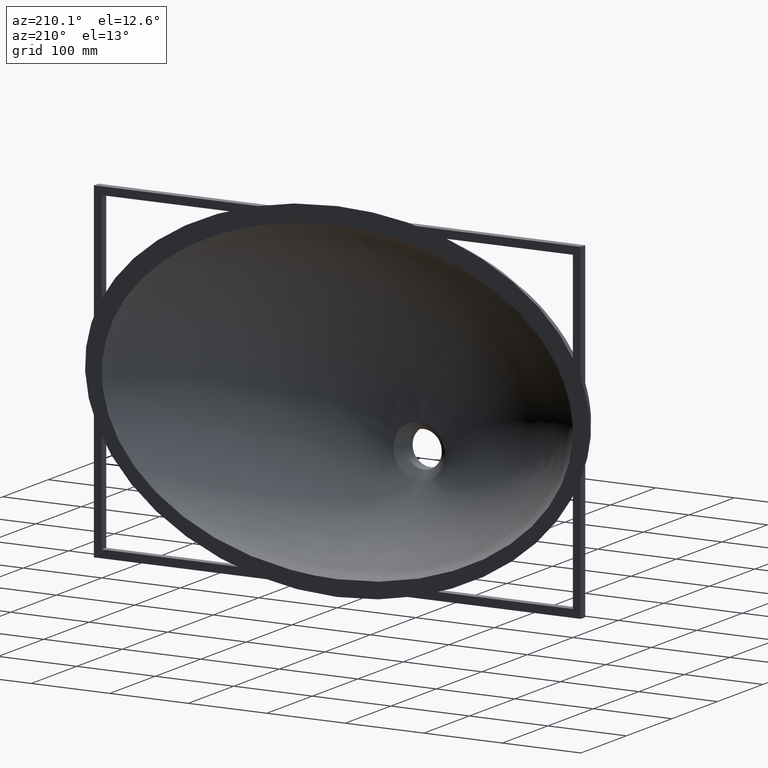
[diagram: clean part render]
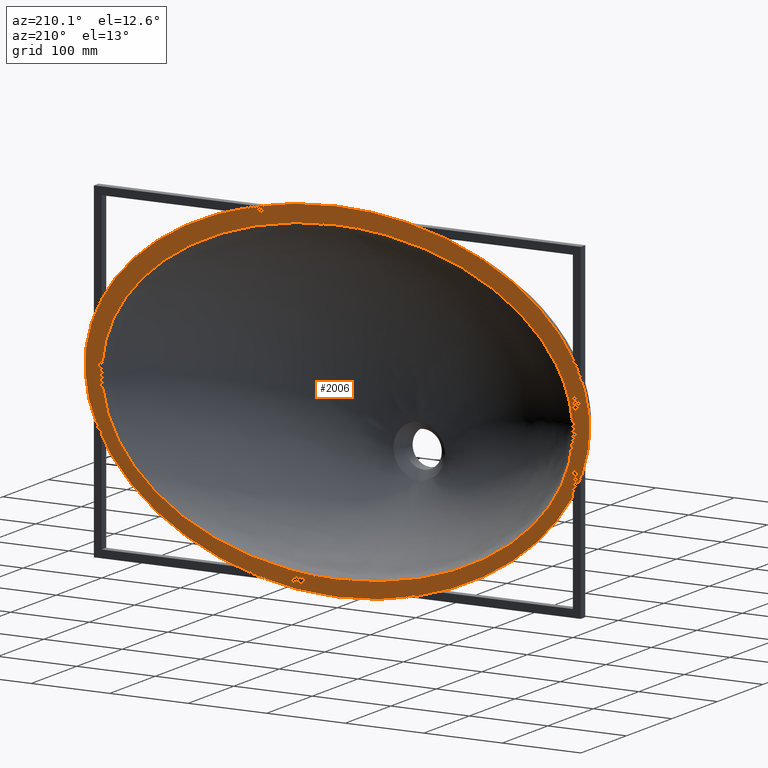
[diagram: same view with one face highlighted and labeled with its STEP entity id]
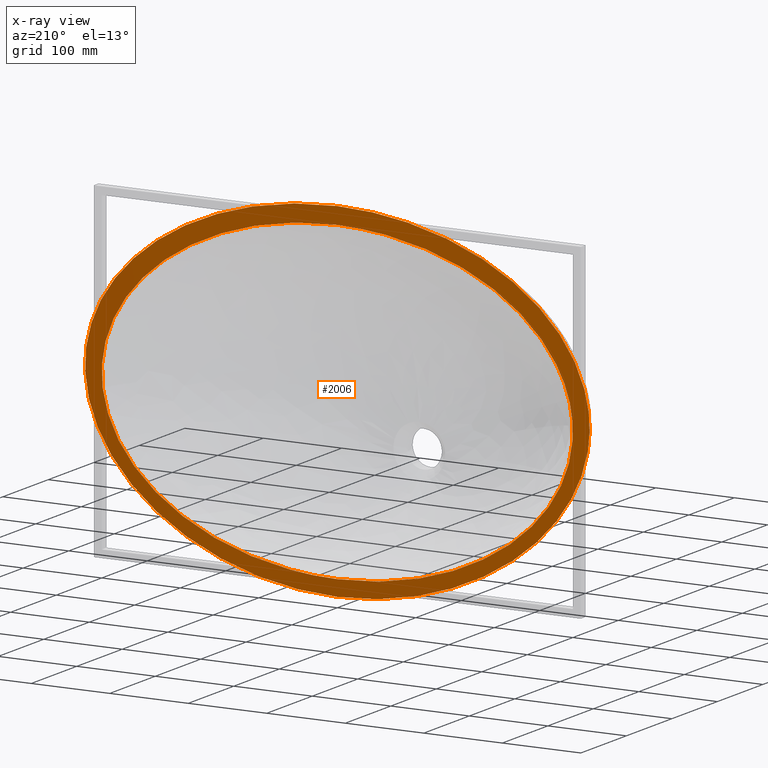
[diagram: x-ray of the same camera — body ghosted, the highlighted face saturated]
A machine part, auxiliary view. The second image highlights one B-rep face of the part: STEP entity #2006.
The next image is the same camera in x-ray: the body ghosted, the highlighted face saturated — about 0% of this face is hidden behind the body in this view.
In plain terms, the highlighted planar face has unit normal (0, 1, 0).
Its self-contained STEP definition (entity closure, byte-faithful):
#25 = CARTESIAN_POINT ( 'NONE',  ( -96.94433853191210900, 0.0000000000000000000, -190.0690652849752100 ) ) ;
#33 = B_SPLINE_CURVE_WITH_KNOTS ( 'NONE', 3,
 ( #3662, #3337, #879, #2982, #525, #2623, #172, #2267, #4356, #1917, #4002, #1506, #3580, #1151, #3241, #796, #2899, #446, #2548, #88, #2193, #4278, #1836 ),
 .UNSPECIFIED., .F., .F.,
 ( 4, 1, 1, 1, 1, 1, 1, 1, 1, 1, 1, 1, 1, 1, 1, 1, 1, 1, 1, 1, 4 ),
 ( 0.0000000000000000000, 0.006249999999981435300, 0.03124999999990673400, 0.04687499999986010500, 0.07812499999976683900, 0.09374999999972021000, 0.1249999999996269400, 0.1562499999995336800, 0.1718749999994870500, 0.2031249999993937600, 0.2499999999994795800, 0.2578124999992305600, 0.2968749999991139900, 0.3281249999990207300, 0.3437499999989741000, 0.3749999999988808400, 0.4062499999987875300, 0.4218749999987409000, 0.4531249999986476400, 0.4687499999986010100, 0.5000000000000000000 ),
 .UNSPECIFIED. ) ;
#88 = CARTESIAN_POINT ( 'NONE',  ( -103.2381490970990100, 2.132497335907396700E-014, 210.7208023381491600 ) ) ;
#107 = CARTESIAN_POINT ( 'NONE',  ( -6.362098348144940000E-013, 0.0000000000000000000, -199.9999999999999400 ) ) ;
#160 = CARTESIAN_POINT ( 'NONE',  ( 270.1489477475109300, 0.0000000000000000000, 88.69899296314076800 ) ) ;
#172 = CARTESIAN_POINT ( 'NONE',  ( -187.0728004054563200, 6.300348080448575400E-014, -176.9853294242731700 ) ) ;
#198 = CARTESIAN_POINT ( 'NONE',  ( 103.4425654388036500, 8.681087635249622700E-014, -208.2346759364824000 ) ) ;
#215 = CARTESIAN_POINT ( 'NONE',  ( 186.7491606980555600, 2.125024848000798700E-014, 182.1903061432608700 ) ) ;
#217 = CARTESIAN_POINT ( 'NONE',  ( 299.2574925619122700, 0.0000000000000000000, 23.02731537193677600 ) ) ;
#345 = CARTESIAN_POINT ( 'NONE',  ( -299.2574925619124400, 0.0000000000000000000, 23.02731537193735500 ) ) ;
#384 = CARTESIAN_POINT ( 'NONE',  ( -23.68704373531275200, 0.0000000000000000000, -199.7357332564771500 ) ) ;
#446 = CARTESIAN_POINT ( 'NONE',  ( -186.7491606985207400, 1.314410326570079300E-014, 182.1903061432327600 ) ) ;
#447 = CARTESIAN_POINT ( 'NONE',  ( -0.0006487715735293528300, 1.733652424677053100E-014, 221.3074660610588500 ) ) ;
#513 = CARTESIAN_POINT ( 'NONE',  ( 133.0484894441825600, 0.0000000000000000000, 180.0992985005259500 ) ) ;
#525 = CARTESIAN_POINT ( 'NONE',  ( -103.4425654388303100, 9.491743668828565400E-014, -208.2346759364781700 ) ) ;
#549 = ORIENTED_EDGE ( 'NONE', *, *, #2599, .T. ) ;
#556 = CARTESIAN_POINT ( 'NONE',  ( 187.0728004054444400, 1.002927147227052500E-013, -176.9853294243066600 ) ) ;
#571 = CARTESIAN_POINT ( 'NONE',  ( 93.60132262826411400, 1.908531697946425700E-014, 213.3774224310046700 ) ) ;
#573 = CARTESIAN_POINT ( 'NONE',  ( 292.5809894682097400, 0.0000000000000000000, -52.59516732166746800 ) ) ;
#692 = CARTESIAN_POINT ( 'NONE',  ( -213.5339019161863500, 0.0000000000000000000, 142.3539857734975600 ) ) ;
#697 = FACE_OUTER_BOUND ( 'NONE', #3290, .T. ) ;
#738 = CARTESIAN_POINT ( 'NONE',  ( 133.0484152298465700, 0.0000000000000000000, -180.0992919159568300 ) ) ;
#796 = CARTESIAN_POINT ( 'NONE',  ( -261.5491677906017600, 1.837701785896500800E-014, 132.5977633600806800 ) ) ;
#869 = VERTEX_POINT ( 'NONE', #4456 ) ;
#879 = CARTESIAN_POINT ( 'NONE',  ( -25.25832762055700400, 9.166875791520263900E-014, -219.7174572414067200 ) ) ;
#909 = CARTESIAN_POINT ( 'NONE',  ( 261.8840565633610100, 1.026343022257116000E-013, -123.7872414932501200 ) ) ;
#997 = DIRECTION ( 'NONE',  ( -4.262204693774048100E-014, 4.699128987282814100E-015, -1.000000000000000000 ) ) ;
#1045 = CARTESIAN_POINT ( 'NONE',  ( 96.94433853191156900, 0.0000000000000000000, -190.0690652849763500 ) ) ;
#1050 = CARTESIAN_POINT ( 'NONE',  ( -96.94466377228847900, 0.0000000000000000000, 190.0690946651085100 ) ) ;
#1070 = B_SPLINE_CURVE_WITH_KNOTS ( 'NONE', 3,
 ( #2079, #4146, #384, #2486, #25, #1383, #3137, #3470, #4181, #3831, #4541, #1739, #345, #2096, #2445, #2793, #692, #3151, #1396, #1050, #3484, #3848, #1755 ),
 .UNSPECIFIED., .F., .F.,
 ( 4, 1, 1, 1, 1, 1, 1, 1, 1, 1, 1, 1, 1, 1, 1, 1, 1, 1, 1, 1, 4 ),
 ( 0.0000000000000000000, 0.006249999999981435300, 0.03124999999990673400, 0.04687499999986010500, 0.07812499999976683900, 0.09374999999972021000, 0.1249999999996269400, 0.1562499999995336800, 0.1718749999994870500, 0.2031249999993937600, 0.2499999999994795800, 0.2578124999992305600, 0.2968749999991139900, 0.3281249999990207300, 0.3437499999989741000, 0.3749999999988808400, 0.4062499999987875300, 0.4218749999987409000, 0.4531249999986476400, 0.4687499999986010100, 0.5000000000000000000 ),
 .UNSPECIFIED. ) ;
#1092 = CARTESIAN_POINT ( 'NONE',  ( 213.5309949853090900, 0.0000000000000000000, -142.3559360581180600 ) ) ;
#1097 = VERTEX_POINT ( 'NONE', #4032 ) ;
#1151 = CARTESIAN_POINT ( 'NONE',  ( -311.0967812957409300, 4.371157651870882800E-014, 66.91014294250746300 ) ) ;
#1180 = DIRECTION ( 'NONE',  ( 0.0000000000000000000, 1.000000000000000000, 4.699128987282814100E-015 ) ) ;
#1248 = CARTESIAN_POINT ( 'NONE',  ( 87.91870735431484700, 0.0000000000000000000, 192.5615437062534200 ) ) ;
#1263 = CARTESIAN_POINT ( 'NONE',  ( 313.3264325010988500, 1.634794181189807400E-013, -51.54986297901562900 ) ) ;
#1383 = CARTESIAN_POINT ( 'NONE',  ( -133.0484152298468000, 0.0000000000000000000, -180.0992919159578800 ) ) ;
#1396 = CARTESIAN_POINT ( 'NONE',  ( -133.0484894441826500, 0.0000000000000000000, 180.0992985005259200 ) ) ;
#1485 = CARTESIAN_POINT ( 'NONE',  ( 9.868849444056490200, 0.0000000000000000000, 199.9999300213351300 ) ) ;
#1489 = CARTESIAN_POINT ( 'NONE',  ( -6.362098348144940000E-013, 0.0000000000000000000, -199.9999999999999400 ) ) ;
#1506 = CARTESIAN_POINT ( 'NONE',  ( -322.1815162350458800, 8.439135629227813000E-014, -11.58106663341366300 ) ) ;
#1611 = CARTESIAN_POINT ( 'NONE',  ( 320.4813010082536400, 2.708718828605042700E-014, 31.59017061801559800 ) ) ;
#1654 = ORIENTED_EDGE ( 'NONE', *, *, #3349, .F. ) ;
#1739 = CARTESIAN_POINT ( 'NONE',  ( -300.7422975368904200, 0.0000000000000000000, -16.44808241169866400 ) ) ;
#1755 = CARTESIAN_POINT ( 'NONE',  ( -0.0006890187848275614600, 0.0000000000000000000, 199.9997437728862900 ) ) ;
#1827 = ORIENTED_EDGE ( 'NONE', *, *, #2355, .F. ) ;
#1836 = CARTESIAN_POINT ( 'NONE',  ( -0.0006487715735293528300, 1.733652424677053100E-014, 221.3074660610588500 ) ) ;
#1917 = CARTESIAN_POINT ( 'NONE',  ( -289.0555848351286300, 6.081466707671005300E-014, -92.08676348516095800 ) ) ;
#1943 = CARTESIAN_POINT ( 'NONE',  ( 4.209555136095612900, 9.495602512692405600E-014, -220.0346462077927800 ) ) ;
#1957 = CARTESIAN_POINT ( 'NONE',  ( 261.5491677903448200, 4.755972683741357100E-014, 132.5977633600815300 ) ) ;
#1996 = VERTEX_POINT ( 'NONE', #447 ) ;
#2006 = ADVANCED_FACE ( 'NONE', ( #697, #2296 ), #2011, .T. ) ;
#2011 = PLANE ( 'NONE',  #3262 ) ;
#2079 = CARTESIAN_POINT ( 'NONE',  ( -6.362098348144940000E-013, 0.0000000000000000000, -199.9999999999999400 ) ) ;
#2096 = CARTESIAN_POINT ( 'NONE',  ( -290.7116523216570800, 0.0000000000000000000, 55.60381943186195000 ) ) ;
#2193 = CARTESIAN_POINT ( 'NONE',  ( -52.52132286443217900, 3.067564529730748400E-015, 219.1946808513047800 ) ) ;
#2267 = CARTESIAN_POINT ( 'NONE',  ( -228.1687546162612000, 9.858549357085484900E-014, -152.9046759832844500 ) ) ;
#2295 = CARTESIAN_POINT ( 'NONE',  ( 56.69216724761525200, 9.937845445696049300E-014, -216.9020447180084800 ) ) ;
#2296 = FACE_BOUND ( 'NONE', #2309, .T. ) ;
#2309 = EDGE_LOOP ( 'NONE', ( #1827, #1654 ) ) ;
#2311 = CARTESIAN_POINT ( 'NONE',  ( 227.8225043417906800, 3.079819575879900200E-014, 159.9053831965243000 ) ) ;
#2313 = CARTESIAN_POINT ( 'NONE',  ( 270.1489455793212600, 0.0000000000000000000, -88.69899277027612100 ) ) ;
#2355 = EDGE_CURVE ( 'NONE', #869, #2625, #1070, .T. ) ;
#2445 = CARTESIAN_POINT ( 'NONE',  ( -270.1489477475099600, 0.0000000000000000000, 88.69899296314172000 ) ) ;
#2486 = CARTESIAN_POINT ( 'NONE',  ( -53.16030504817634000, 0.0000000000000000000, -197.3820846924904800 ) ) ;
#2548 = CARTESIAN_POINT ( 'NONE',  ( -141.7854549698848000, 1.893408864643092100E-014, 200.0943219668372700 ) ) ;
#2599 = EDGE_CURVE ( 'NONE', #1996, #1097, #3823, .T. ) ;
#2612 = CARTESIAN_POINT ( 'NONE',  ( 175.1322599664756300, 0.0000000000000000000, 163.2848377583363500 ) ) ;
#2623 = CARTESIAN_POINT ( 'NONE',  ( -142.0556307888437600, 8.192568806186188300E-014, -196.5135697462370700 ) ) ;
#2625 = VERTEX_POINT ( 'NONE', #3680 ) ;
#2654 = CARTESIAN_POINT ( 'NONE',  ( 142.0556307888205900, 9.327446425774334400E-014, -196.5135697462502500 ) ) ;
#2667 = CARTESIAN_POINT ( 'NONE',  ( 141.7854549693249200, 2.866158213642464000E-014, 200.0943219668692400 ) ) ;
#2669 = CARTESIAN_POINT ( 'NONE',  ( 300.7422975368905300, 0.0000000000000000000, -16.44808241169922500 ) ) ;
#2793 = CARTESIAN_POINT ( 'NONE',  ( -244.9272566397063700, 0.0000000000000000000, 116.7548399773616800 ) ) ;
#2826 = EDGE_CURVE ( 'NONE', #1097, #1996, #33, .T. ) ;
#2834 = CARTESIAN_POINT ( 'NONE',  ( 175.1323095684038500, 0.0000000000000000000, -163.2848421583269400 ) ) ;
#2899 = CARTESIAN_POINT ( 'NONE',  ( -227.8225043421535600, 4.052622065544025800E-014, 159.9053831965060500 ) ) ;
#2932 = CARTESIAN_POINT ( 'NONE',  ( -0.0006890187848275614600, 0.0000000000000000000, 199.9997437728862900 ) ) ;
#2982 = CARTESIAN_POINT ( 'NONE',  ( -56.69216724763666100, 8.965083829889200300E-014, -216.9020447180126000 ) ) ;
#3009 = CARTESIAN_POINT ( 'NONE',  ( 228.1687546162680500, 4.994668373597370300E-014, -152.9046759833381900 ) ) ;
#3010 = CARTESIAN_POINT ( 'NONE',  ( 244.9272566397063100, 0.0000000000000000000, 116.7548399773610600 ) ) ;
#3025 = CARTESIAN_POINT ( 'NONE',  ( 42.01083009414450900, 1.090455194907997300E-014, 220.2522133556202300 ) ) ;
#3028 = CARTESIAN_POINT ( 'NONE',  ( 290.7116523216593000, 0.0000000000000000000, 55.60381943186168700 ) ) ;
#3137 = CARTESIAN_POINT ( 'NONE',  ( -175.1323095684060400, 0.0000000000000000000, -163.2848421583254900 ) ) ;
#3146 = CARTESIAN_POINT ( 'NONE',  ( 53.16030504817469900, 0.0000000000000000000, -197.3820846924896000 ) ) ;
#3151 = CARTESIAN_POINT ( 'NONE',  ( -175.1322599664740700, 0.0000000000000000000, 163.2848377583370600 ) ) ;
#3184 = CARTESIAN_POINT ( 'NONE',  ( 244.9272598765362500, 0.0000000000000000000, -116.7548402648084100 ) ) ;
#3241 = CARTESIAN_POINT ( 'NONE',  ( -288.7655690495492400, 3.872738229600665100E-014, 102.5399615794272100 ) ) ;
#3262 = AXIS2_PLACEMENT_3D ( 'NONE', #1489, #1180, #997 ) ;
#3290 = EDGE_LOOP ( 'NONE', ( #3408, #549 ) ) ;
#3306 = CARTESIAN_POINT ( 'NONE',  ( 39.47539777906958100, 0.0000000000000000000, 199.0100600654545500 ) ) ;
#3337 = CARTESIAN_POINT ( 'NONE',  ( -4.209555136098668300, 9.333474836306875900E-014, -220.0346462077934000 ) ) ;
#3349 = EDGE_CURVE ( 'NONE', #2625, #869, #3515, .T. ) ;
#3353 = CARTESIAN_POINT ( 'NONE',  ( 289.0555848351766600, 4.460141793451292400E-014, -92.08676348524744500 ) ) ;
#3408 = ORIENTED_EDGE ( 'NONE', *, *, #2826, .T. ) ;
#3470 = CARTESIAN_POINT ( 'NONE',  ( -213.5309949853119100, 0.0000000000000000000, -142.3559360581172100 ) ) ;
#3480 = CARTESIAN_POINT ( 'NONE',  ( 23.68704373531135900, 0.0000000000000000000, -199.7357332564770000 ) ) ;
#3484 = CARTESIAN_POINT ( 'NONE',  ( -49.35251544001330600, 0.0000000000000000000, 198.0179551282000700 ) ) ;
#3515 = B_SPLINE_CURVE_WITH_KNOTS ( 'NONE', 3,
 ( #2932, #1485, #3306, #1248, #513, #2612, #4016, #3010, #160, #3028, #217, #2669, #573, #2313, #3184, #1092, #2834, #738, #1045, #3146, #3480, #3843, #107 ),
 .UNSPECIFIED., .F., .F.,
 ( 4, 1, 1, 1, 1, 1, 1, 1, 1, 1, 1, 1, 1, 1, 1, 1, 1, 1, 1, 1, 4 ),
 ( 0.5000000000000000000, 0.5156249999985543800, 0.5468749999986476400, 0.5781249999987409000, 0.5937499999987875300, 0.6249999999988807800, 0.6562499999989740400, 0.6718749999990206700, 0.7031249999991140400, 0.7421874999992306200, 0.7499999999992981200, 0.7968749999993938200, 0.8281249999994870800, 0.8437499999995337100, 0.8749999999996269700, 0.9062499999997202200, 0.9218749999997668500, 0.9531249999998601100, 0.9687499999999067400, 0.9937499999999813700, 1.000000000000000000 ),
 .UNSPECIFIED. ) ;
#3580 = CARTESIAN_POINT ( 'NONE',  ( -320.4813010082367000, 2.222381412898955300E-014, 31.59017061810773800 ) ) ;
#3662 = CARTESIAN_POINT ( 'NONE',  ( -1.490127465864077300E-012, 9.414538674499642000E-014, -220.0346462077930900 ) ) ;
#3680 = CARTESIAN_POINT ( 'NONE',  ( -0.0006890187848275614600, 0.0000000000000000000, 199.9997437728862900 ) ) ;
#3697 = CARTESIAN_POINT ( 'NONE',  ( 322.1815162351030000, 7.790574872373190700E-014, -11.58106663352174000 ) ) ;
#3712 = CARTESIAN_POINT ( 'NONE',  ( 10.50270752260297500, 1.744460233332056400E-014, 221.3076414302042300 ) ) ;
#3823 = B_SPLINE_CURVE_WITH_KNOTS ( 'NONE', 3,
 ( #4064, #3712, #3025, #571, #2667, #215, #2311, #1957, #4045, #4402, #1611, #3697, #1263, #3353, #909, #3009, #556, #2654, #198, #2295, #4389, #1943, #4028 ),
 .UNSPECIFIED., .F., .F.,
 ( 4, 1, 1, 1, 1, 1, 1, 1, 1, 1, 1, 1, 1, 1, 1, 1, 1, 1, 1, 1, 4 ),
 ( 0.5000000000000000000, 0.5156249999985543800, 0.5468749999986476400, 0.5781249999987409000, 0.5937499999987875300, 0.6249999999988807800, 0.6562499999989740400, 0.6718749999990206700, 0.7031249999991140400, 0.7421874999992306200, 0.7499999999992981200, 0.7968749999993938200, 0.8281249999994870800, 0.8437499999995337100, 0.8749999999996269700, 0.9062499999997202200, 0.9218749999997668500, 0.9531249999998601100, 0.9687499999999067400, 0.9937499999999813700, 1.000000000000000000 ),
 .UNSPECIFIED. ) ;
#3831 = CARTESIAN_POINT ( 'NONE',  ( -270.1489455793255300, 0.0000000000000000000, -88.69899277027559500 ) ) ;
#3843 = CARTESIAN_POINT ( 'NONE',  ( 3.947687083879967100, 0.0000000000000000000, -199.9999999999999400 ) ) ;
#3848 = CARTESIAN_POINT ( 'NONE',  ( -19.73976594446746100, 0.0000000000000000000, 199.9993712759886900 ) ) ;
#4002 = CARTESIAN_POINT ( 'NONE',  ( -313.3264325010408700, 9.376472319754660900E-014, -51.54986297890377500 ) ) ;
#4016 = CARTESIAN_POINT ( 'NONE',  ( 213.5339019161868900, 0.0000000000000000000, 142.3539857734967000 ) ) ;
#4028 = CARTESIAN_POINT ( 'NONE',  ( -1.490127465864077300E-012, 9.414538674499642000E-014, -220.0346462077930900 ) ) ;
#4032 = CARTESIAN_POINT ( 'NONE',  ( -1.490127465864077300E-012, 9.414538674499642000E-014, -220.0346462077930900 ) ) ;
#4045 = CARTESIAN_POINT ( 'NONE',  ( 288.7655690493943400, 3.224182938830780200E-014, 102.5399615794056000 ) ) ;
#4064 = CARTESIAN_POINT ( 'NONE',  ( -0.0006487715735293528300, 1.733652424677053100E-014, 221.3074660610588500 ) ) ;
#4146 = CARTESIAN_POINT ( 'NONE',  ( -3.947687083881310100, 0.0000000000000000000, -199.9999999999999400 ) ) ;
#4181 = CARTESIAN_POINT ( 'NONE',  ( -244.9272598765344100, 0.0000000000000000000, -116.7548402648085600 ) ) ;
#4278 = CARTESIAN_POINT ( 'NONE',  ( -21.00736135992653800, 1.712036807367047400E-014, 221.3071153227682300 ) ) ;
#4356 = CARTESIAN_POINT ( 'NONE',  ( -261.8840565633271900, 6.048133160102171800E-014, -123.7872414931774800 ) ) ;
#4389 = CARTESIAN_POINT ( 'NONE',  ( 25.25832762055156500, 9.653257038103781400E-014, -219.7174572414033900 ) ) ;
#4402 = CARTESIAN_POINT ( 'NONE',  ( 311.0967812956888600, 5.992394542829832300E-014, 66.91014294245788100 ) ) ;
#4456 = CARTESIAN_POINT ( 'NONE',  ( -6.362098348144940000E-013, 0.0000000000000000000, -199.9999999999999400 ) ) ;
#4541 = CARTESIAN_POINT ( 'NONE',  ( -292.5809894682122900, 0.0000000000000000000, -52.59516732166766000 ) ) ;